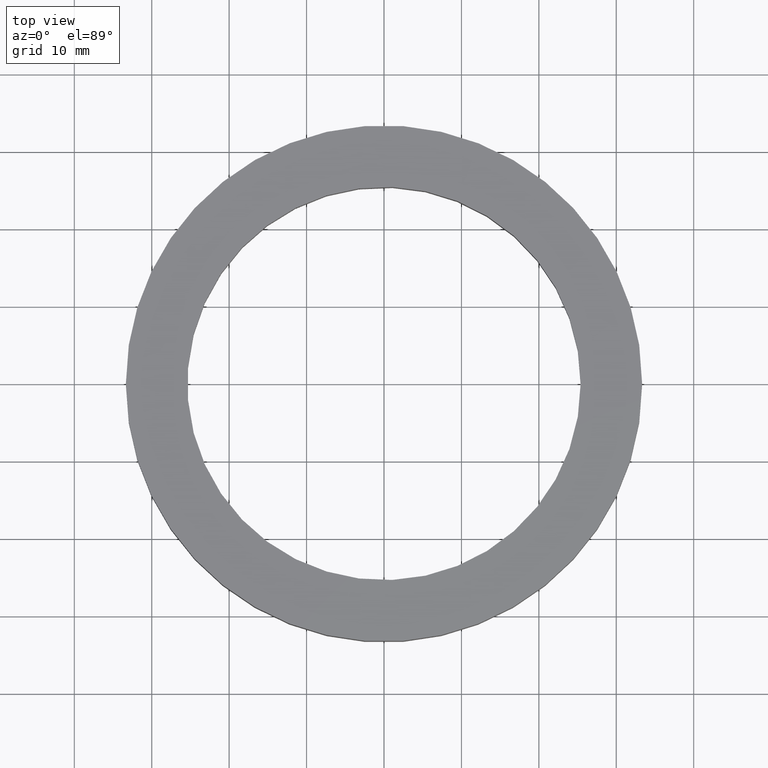
[diagram: clean part render]
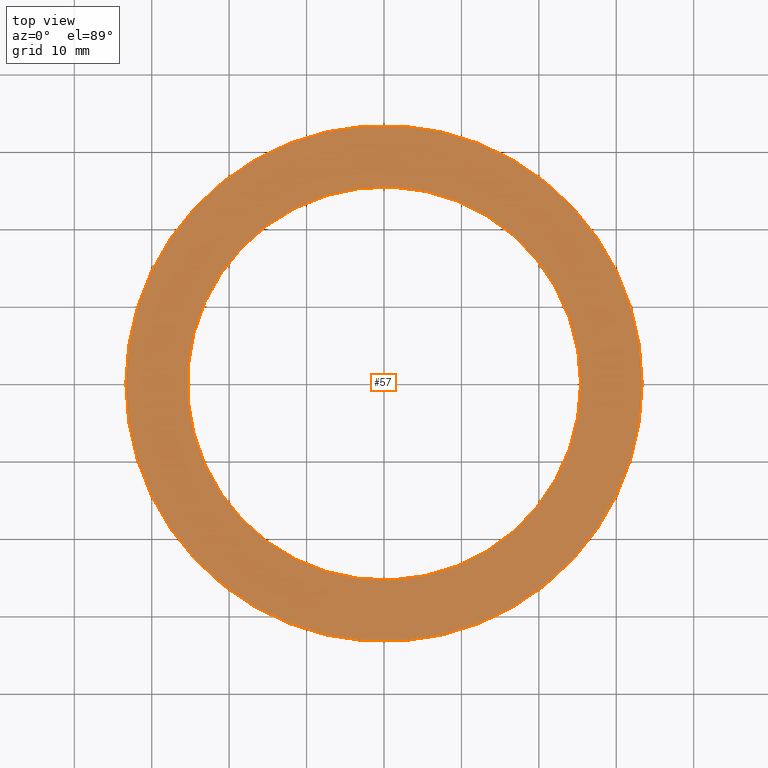
[diagram: same view with one face highlighted and labeled with its STEP entity id]
A machine part, top view. The second image highlights one B-rep face of the part: STEP entity #57.
In plain terms, the highlighted planar face has unit normal (0, 0, -1).
Its self-contained STEP definition (entity closure, byte-faithful):
#15=PLANE('',#73);
#19=FACE_BOUND('',#30,.T.);
#23=FACE_OUTER_BOUND('',#29,.T.);
#29=EDGE_LOOP('',(#49));
#30=EDGE_LOOP('',(#50));
#33=CIRCLE('',#68,1.);
#35=CIRCLE('',#71,1.3125);
#37=VERTEX_POINT('',#95);
#39=VERTEX_POINT('',#100);
#41=EDGE_CURVE('',#37,#37,#33,.T.);
#43=EDGE_CURVE('',#39,#39,#35,.T.);
#49=ORIENTED_EDGE('',*,*,#43,.F.);
#50=ORIENTED_EDGE('',*,*,#41,.T.);
#57=ADVANCED_FACE('',(#23,#19),#15,.F.);
#68=AXIS2_PLACEMENT_3D('',#96,#79,#80);
#71=AXIS2_PLACEMENT_3D('',#101,#85,#86);
#73=AXIS2_PLACEMENT_3D('',#104,#89,#90);
#79=DIRECTION('center_axis',(0.,0.,-1.));
#80=DIRECTION('ref_axis',(-1.,0.,0.));
#85=DIRECTION('center_axis',(0.,0.,-1.));
#86=DIRECTION('ref_axis',(-1.,0.,0.));
#89=DIRECTION('center_axis',(0.,0.,-1.));
#90=DIRECTION('ref_axis',(-1.,0.,0.));
#95=CARTESIAN_POINT('',(1.,-1.22464679914735E-16,0.175));
#96=CARTESIAN_POINT('Origin',(0.,0.,0.175));
#100=CARTESIAN_POINT('',(1.3125,1.6073489238809E-16,0.175));
#101=CARTESIAN_POINT('Origin',(0.,0.,0.175));
#104=CARTESIAN_POINT('Origin',(0.,0.,0.175));